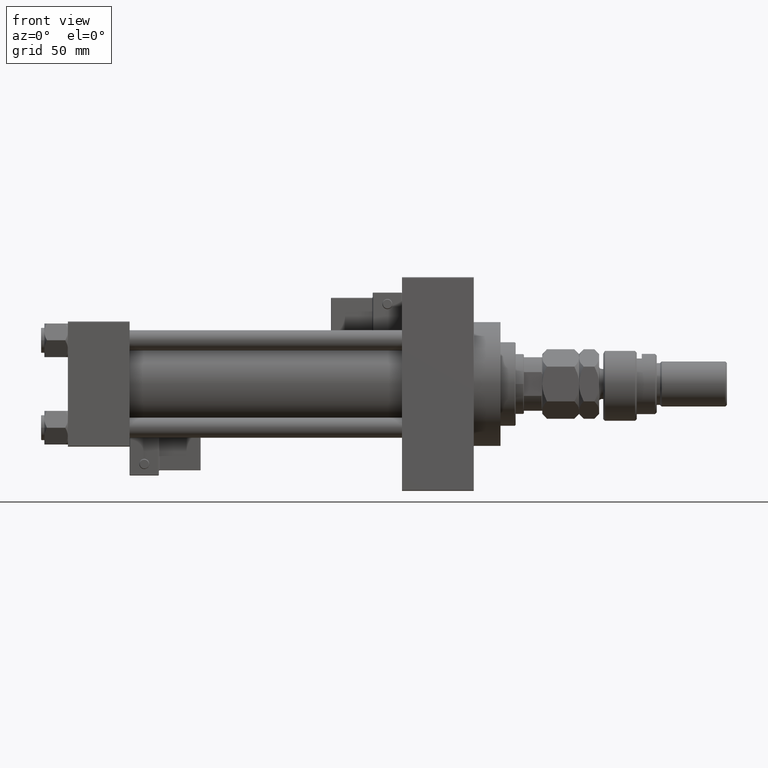
[diagram: clean part render]
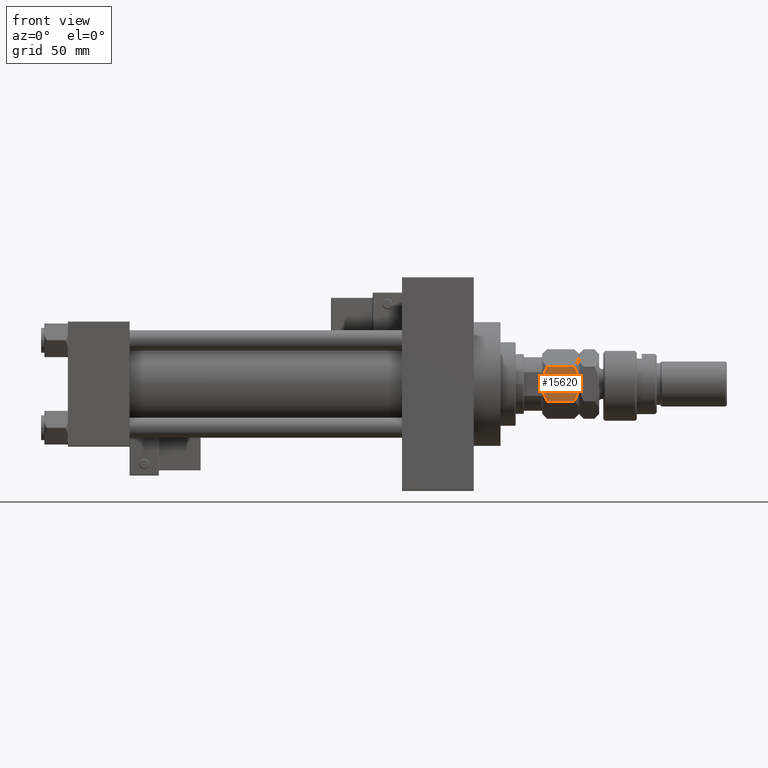
[diagram: same view with one face highlighted and labeled with its STEP entity id]
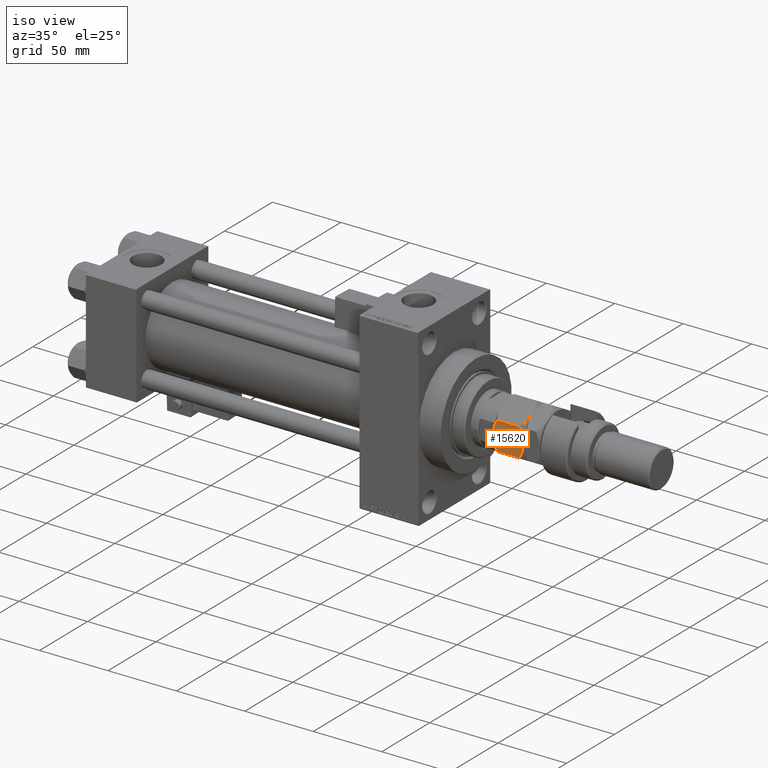
[diagram: same view with one face highlighted and labeled with its STEP entity id]
A machine part, front view. The second image highlights one B-rep face of the part: STEP entity #15620.
A second angle (iso view) of the same face is appended — the face is thin or edge-on in the first view.
In plain terms, the highlighted planar face has unit normal (0, 1, 0).
Its self-contained STEP definition (entity closure, byte-faithful):
#2076 = ORIENTED_EDGE ( 'NONE', *, *, #15815, .F. ) ;
#2531 = CARTESIAN_POINT ( 'NONE',  ( 8.999999999999994671, -15.58845726811989607, 0.000000000000000000 ) ) ;
#3518 = EDGE_CURVE ( 'NONE', #40531, #6099, #52196, .T. ) ;
#5541 = CARTESIAN_POINT ( 'NONE',  ( 18.00000000000000000, -10.39230484541326760, 22.00000000000000000 ) ) ;
#5868 = CARTESIAN_POINT ( 'NONE',  ( 5.097327296964719423, -17.84166640377631552, 21.46291444417098049 ) ) ;
#6099 = VERTEX_POINT ( 'NONE', #37818 ) ;
#6654 = CARTESIAN_POINT ( 'NONE',  ( 1.409696000463984467, -19.97072132548310108, 1.970721325483046238 ) ) ;
#7606 = VECTOR ( 'NONE', #13292, 1000.000000000000000 ) ;
#9987 = CARTESIAN_POINT ( 'NONE',  ( 5.895697476400517445, -17.38072716576608912, 0.2763959071215842944 ) ) ;
#10270 = CARTESIAN_POINT ( 'NONE',  ( -5.711424626294094742E-16, -20.78460969082652454, 2.784609690826514772 ) ) ;
#11080 = CARTESIAN_POINT ( 'NONE',  ( 9.790461530629871234, -15.13208409062669801, 0.01733285647409176997 ) ) ;
#11473 = ORIENTED_EDGE ( 'NONE', *, *, #41935, .F. ) ;
#12043 = CARTESIAN_POINT ( 'NONE',  ( 8.999999999999992895, -15.58845726811989252, 22.00000000000000000 ) ) ;
#13292 = DIRECTION ( 'NONE',  ( -0.000000000000000000, -0.000000000000000000, -1.000000000000000000 ) ) ;
#14155 = CARTESIAN_POINT ( 'NONE',  ( 8.999999999999992895, -15.58845726811989252, 22.00000000000000000 ) ) ;
#15082 = ORIENTED_EDGE ( 'NONE', *, *, #31041, .T. ) ;
#15620 = ADVANCED_FACE ( 'NONE', ( #44580 ), #39880, .F. ) ;
#15815 = EDGE_CURVE ( 'NONE', #54651, #44546, #51445, .T. ) ;
#15946 = EDGE_CURVE ( 'NONE', #53240, #54651, #22871, .T. ) ;
#18318 = CARTESIAN_POINT ( 'NONE',  ( 8.209538469370121661, -16.04483044561310479, 21.98266714352591222 ) ) ;
#19397 = CARTESIAN_POINT ( 'NONE',  ( 15.14539811114618928, -12.04041001437223102, 1.277383077889873153 ) ) ;
#20192 = CARTESIAN_POINT ( 'NONE',  ( 15.13928418966203004, -12.04393988858690356, 20.72742529849574922 ) ) ;
#22464 = CARTESIAN_POINT ( 'NONE',  ( 8.605874323383760682, -15.81600583360882162, 21.99999999999999289 ) ) ;
#22741 = CARTESIAN_POINT ( 'NONE',  ( 5.858009779716796039, -17.40248616759157230, 21.65943689774472602 ) ) ;
#22871 = B_SPLINE_CURVE_WITH_KNOTS ( 'NONE', 3,
 ( #37043, #41735, #32889, #20192, #49489, #28198 ),
 .UNSPECIFIED., .F., .F.,
 ( 4, 2, 4 ),
 ( 0.01077282027732746027, 0.01612137750481873119, 0.02146993473231000038 ),
 .UNSPECIFIED. ) ;
#23807 = VERTEX_POINT ( 'NONE', #29123 ) ;
#25646 = ORIENTED_EDGE ( 'NONE', *, *, #15946, .F. ) ;
#27419 = CARTESIAN_POINT ( 'NONE',  ( 12.14199022028319597, -13.77442836864822340, 0.3405631022552691456 ) ) ;
#27968 = CARTESIAN_POINT ( 'NONE',  ( 10.97671975407794953, -14.44719758599054593, 0.1387225990985770097 ) ) ;
#28198 = CARTESIAN_POINT ( 'NONE',  ( 18.00000000000000000, -10.39230484541326760, 19.21539030917347901 ) ) ;
#28874 = EDGE_CURVE ( 'NONE', #23807, #53240, #30864, .T. ) ;
#29123 = CARTESIAN_POINT ( 'NONE',  ( -6.333703707815436362E-16, -20.78460969082652454, 19.21539030917348256 ) ) ;
#29894 = B_SPLINE_CURVE_WITH_KNOTS ( 'NONE', 3,
 ( #31287, #35443, #19397, #40398, #27419, #27968, #52850, #11080, #53111, #2531 ),
 .UNSPECIFIED., .F., .F.,
 ( 4, 2, 2, 2, 4 ),
 ( 2.544307986804616605E-07, 0.005386537354063076002, 0.008079678815695275074, 0.009426249546511373742, 0.01077282027732747241 ),
 .UNSPECIFIED. ) ;
#30400 = DIRECTION ( 'NONE',  ( -0.000000000000000000, -0.000000000000000000, -1.000000000000000000 ) ) ;
#30864 = B_SPLINE_CURVE_WITH_KNOTS ( 'NONE', 3,
 ( #39317, #47624, #39047, #5868, #22741, #38781, #43458, #18318, #22464, #14155 ),
 .UNSPECIFIED., .F., .F.,
 ( 4, 2, 2, 2, 4 ),
 ( 2.544307986817554504E-07, 0.005386537354063071666, 0.008079678815695268135, 0.009426249546511363334, 0.01077282027732746027 ),
 .UNSPECIFIED. ) ;
#31041 = EDGE_CURVE ( 'NONE', #23807, #6099, #48084, .T. ) ;
#31287 = CARTESIAN_POINT ( 'NONE',  ( 18.00000000000000000, -10.39230484541326760, 2.784609690826518769 ) ) ;
#32084 = CARTESIAN_POINT ( 'NONE',  ( 7.434539168300455358, -16.49227650070744033, 3.567702773835112239E-15 ) ) ;
#32185 = EDGE_LOOP ( 'NONE', ( #11473, #2076, #25646, #40832, #15082, #53766 ) ) ;
#32889 = CARTESIAN_POINT ( 'NONE',  ( 12.10430252359947545, -13.79618737047370658, 21.72360409287842131 ) ) ;
#35443 = CARTESIAN_POINT ( 'NONE',  ( 16.58866960374795596, -11.20713682960488988, 1.969777706634904035 ) ) ;
#36231 = CARTESIAN_POINT ( 'NONE',  ( 2.860715810337961074, -19.13297464765287614, 1.272574701504241457 ) ) ;
#36276 = DIRECTION ( 'NONE',  ( -0.8660254037844388186, -0.4999999999999997224, 0.000000000000000000 ) ) ;
#36547 = DIRECTION ( 'NONE',  ( -0.4999999999999997224, 0.8660254037844388186, 0.000000000000000000 ) ) ;
#37043 = CARTESIAN_POINT ( 'NONE',  ( 8.999999999999992895, -15.58845726811989252, 22.00000000000000000 ) ) ;
#37648 = AXIS2_PLACEMENT_3D ( 'NONE', #40434, #36547, #36276 ) ;
#37818 = CARTESIAN_POINT ( 'NONE',  ( -5.711424626294094742E-16, -20.78460969082652454, 2.784609690826514772 ) ) ;
#38781 = CARTESIAN_POINT ( 'NONE',  ( 7.023280245922040699, -16.72971695024925154, 21.86127740090141458 ) ) ;
#39047 = CARTESIAN_POINT ( 'NONE',  ( 2.854601888853810721, -19.13650452186756823, 20.72261692211012374 ) ) ;
#39317 = CARTESIAN_POINT ( 'NONE',  ( -6.333703707815436362E-16, -20.78460969082652454, 19.21539030917348256 ) ) ;
#39519 = CARTESIAN_POINT ( 'NONE',  ( -8.673617379884035472E-16, -20.78460969082652454, 22.00000000000000000 ) ) ;
#39880 = PLANE ( 'NONE',  #37648 ) ;
#40398 = CARTESIAN_POINT ( 'NONE',  ( 12.90267270303526814, -13.33524813246347662, 0.5370855558290119625 ) ) ;
#40434 = CARTESIAN_POINT ( 'NONE',  ( -8.673617379884035472E-16, -20.78460969082652454, 22.00000000000000000 ) ) ;
#40531 = VERTEX_POINT ( 'NONE', #46157 ) ;
#40677 = CARTESIAN_POINT ( 'NONE',  ( 18.00000000000000000, -10.39230484541326760, 19.21539030917347901 ) ) ;
#40832 = ORIENTED_EDGE ( 'NONE', *, *, #28874, .F. ) ;
#41735 = CARTESIAN_POINT ( 'NONE',  ( 10.56546083169953043, -14.68463803553235358, 21.99999999999998934 ) ) ;
#41813 = VECTOR ( 'NONE', #30400, 1000.000000000000000 ) ;
#41935 = EDGE_CURVE ( 'NONE', #44546, #40531, #29894, .T. ) ;
#43458 = CARTESIAN_POINT ( 'NONE',  ( 7.415748492146448712, -16.50312530264321254, 21.91305310988184374 ) ) ;
#44546 = VERTEX_POINT ( 'NONE', #46964 ) ;
#44580 = FACE_OUTER_BOUND ( 'NONE', #32185, .T. ) ;
#46157 = CARTESIAN_POINT ( 'NONE',  ( 8.999999999999994671, -15.58845726811989607, 0.000000000000000000 ) ) ;
#46964 = CARTESIAN_POINT ( 'NONE',  ( 18.00000000000000000, -10.39230484541326760, 2.784609690826518769 ) ) ;
#47624 = CARTESIAN_POINT ( 'NONE',  ( 1.411330396252046038, -19.96977770663490404, 20.03022229336509952 ) ) ;
#47868 = CARTESIAN_POINT ( 'NONE',  ( 8.999999999999994671, -15.58845726811989607, 0.000000000000000000 ) ) ;
#48084 = LINE ( 'NONE', #39519, #41813 ) ;
#49489 = CARTESIAN_POINT ( 'NONE',  ( 16.59030399953601531, -11.20619321075668928, 20.02927867451694510 ) ) ;
#51445 = LINE ( 'NONE', #5541, #7606 ) ;
#52196 = B_SPLINE_CURVE_WITH_KNOTS ( 'NONE', 3,
 ( #47868, #32084, #9987, #36231, #6654, #10270 ),
 .UNSPECIFIED., .F., .F.,
 ( 4, 2, 4 ),
 ( 0.01077282027732747241, 0.01612137750481873466, 0.02146993473230999691 ),
 .UNSPECIFIED. ) ;
#52850 = CARTESIAN_POINT ( 'NONE',  ( 10.58425150785354063, -14.67378923359658671, 0.08694689011815642798 ) ) ;
#53111 = CARTESIAN_POINT ( 'NONE',  ( 9.394125676616228660, -15.36090870263097585, 3.470293984900869278E-15 ) ) ;
#53240 = VERTEX_POINT ( 'NONE', #12043 ) ;
#53766 = ORIENTED_EDGE ( 'NONE', *, *, #3518, .F. ) ;
#54651 = VERTEX_POINT ( 'NONE', #40677 ) ;